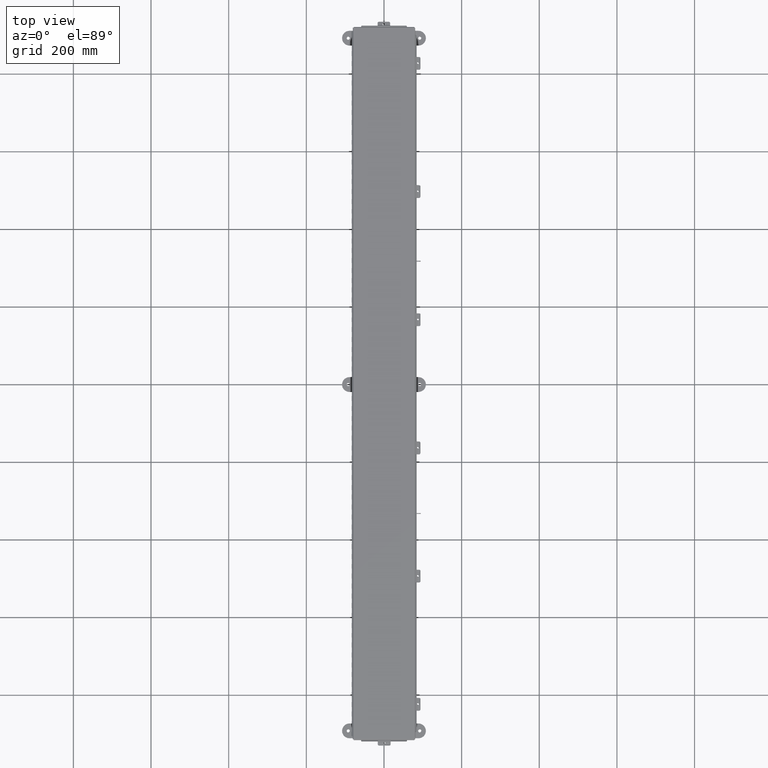
[diagram: clean part render]
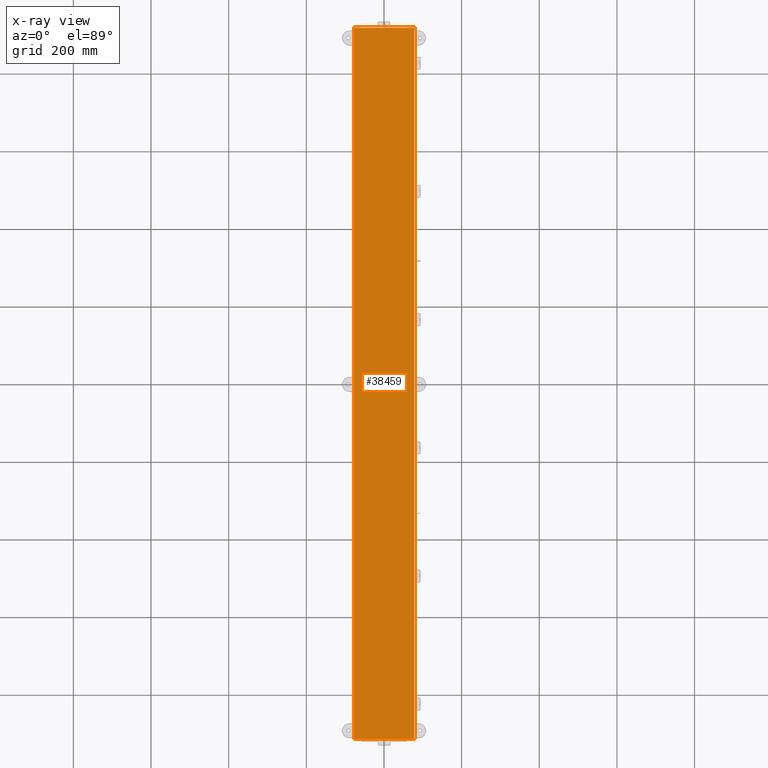
[diagram: x-ray — body ghosted, one internal face saturated and labeled with its STEP entity id]
A machine part, top view, then the same camera in x-ray: the body is ghosted and one INTERNAL B-rep face — a face not visible from any outside direction — is saturated and labeled: STEP entity #38459.
In plain terms, the highlighted planar face has unit normal (-0, -0, 1).
Its self-contained STEP definition (entity closure, byte-faithful):
#3797 = CARTESIAN_POINT ( 'NONE',  ( -3.074478932188133000, 36.06854999999998800, 0.0000000000000000000 ) ) ;
#5706 = CARTESIAN_POINT ( 'NONE',  ( 3.074478932188136100, -36.06855000000000900, 0.0000000000000000000 ) ) ;
#6252 = LINE ( 'NONE', #26036, #40031 ) ;
#6833 = FACE_OUTER_BOUND ( 'NONE', #39747, .T. ) ;
#7655 = VERTEX_POINT ( 'NONE', #14086 ) ;
#7705 = DIRECTION ( 'NONE',  ( 1.000000000000000000, 7.113082760768096600E-028, -0.0000000000000000000 ) ) ;
#9317 = ORIENTED_EDGE ( 'NONE', *, *, #48676, .F. ) ;
#11790 = EDGE_CURVE ( 'NONE', #24654, #7655, #25479, .T. ) ;
#12856 = CARTESIAN_POINT ( 'NONE',  ( 0.0000000000000000000, 0.0000000000000000000, 0.0000000000000000000 ) ) ;
#14086 = CARTESIAN_POINT ( 'NONE',  ( -3.068549999999999200, -36.06855000000000900, 0.0000000000000000000 ) ) ;
#16652 = LINE ( 'NONE', #3797, #47553 ) ;
#16781 = DIRECTION ( 'NONE',  ( 3.282571249759324000E-056, -4.614836295542919100E-029, -1.000000000000000000 ) ) ;
#21444 = DIRECTION ( 'NONE',  ( 7.113082760768099300E-028, 1.000000000000000000, 4.614836295542919100E-029 ) ) ;
#24384 = EDGE_CURVE ( 'NONE', #29494, #24654, #42774, .T. ) ;
#24654 = VERTEX_POINT ( 'NONE', #50274 ) ;
#25479 = LINE ( 'NONE', #5706, #34559 ) ;
#26036 = CARTESIAN_POINT ( 'NONE',  ( -3.068549999999997900, -36.07447893218813600, -1.092739197465705300E-015 ) ) ;
#28902 = DIRECTION ( 'NONE',  ( -1.000000000000000000, -7.113082760768096600E-028, -0.0000000000000000000 ) ) ;
#29494 = VERTEX_POINT ( 'NONE', #48143 ) ;
#34559 = VECTOR ( 'NONE', #28902, 39.37007874015748100 ) ;
#38459 = ADVANCED_FACE ( 'NONE', ( #6833 ), #39979, .F. ) ;
#39712 = AXIS2_PLACEMENT_3D ( 'NONE', #12856, #16781, #43869 ) ;
#39747 = EDGE_LOOP ( 'NONE', ( #39969, #49760, #9317, #47682 ) ) ;
#39969 = ORIENTED_EDGE ( 'NONE', *, *, #24384, .F. ) ;
#39979 = PLANE ( 'NONE',  #39712 ) ;
#40031 = VECTOR ( 'NONE', #21444, 39.37007874015748100 ) ;
#41246 = VERTEX_POINT ( 'NONE', #42936 ) ;
#41574 = VECTOR ( 'NONE', #48615, 39.37007874015748100 ) ;
#42774 = LINE ( 'NONE', #44709, #41574 ) ;
#42936 = CARTESIAN_POINT ( 'NONE',  ( -3.068549999999998800, 36.06854999999998800, 0.0000000000000000000 ) ) ;
#43692 = EDGE_CURVE ( 'NONE', #41246, #29494, #16652, .T. ) ;
#43869 = DIRECTION ( 'NONE',  ( -1.000000000000000000, -7.113082760768096600E-028, 0.0000000000000000000 ) ) ;
#44709 = CARTESIAN_POINT ( 'NONE',  ( 3.068550000000001400, 36.07447893218812100, 1.092739197465705300E-015 ) ) ;
#47553 = VECTOR ( 'NONE', #7705, 39.37007874015748100 ) ;
#47682 = ORIENTED_EDGE ( 'NONE', *, *, #11790, .F. ) ;
#48143 = CARTESIAN_POINT ( 'NONE',  ( 3.068550000000001400, 36.06854999999998800, 1.092739197465705300E-015 ) ) ;
#48615 = DIRECTION ( 'NONE',  ( -7.113082760768099300E-028, -1.000000000000000000, -4.614836295542919100E-029 ) ) ;
#48676 = EDGE_CURVE ( 'NONE', #7655, #41246, #6252, .T. ) ;
#49760 = ORIENTED_EDGE ( 'NONE', *, *, #43692, .F. ) ;
#50274 = CARTESIAN_POINT ( 'NONE',  ( 3.068550000000001400, -36.06855000000000200, 1.092739197465705300E-014 ) ) ;